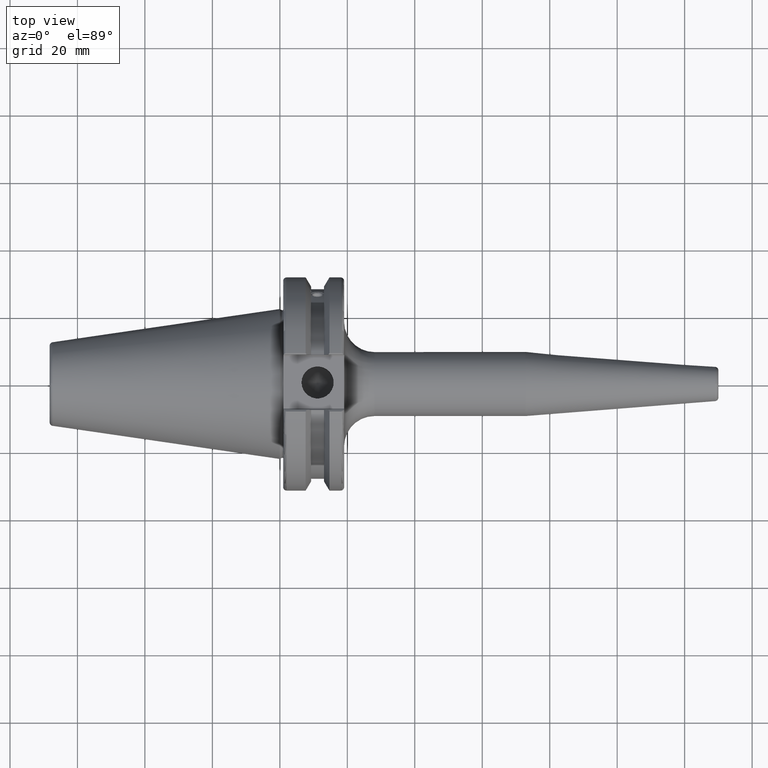
[diagram: clean part render]
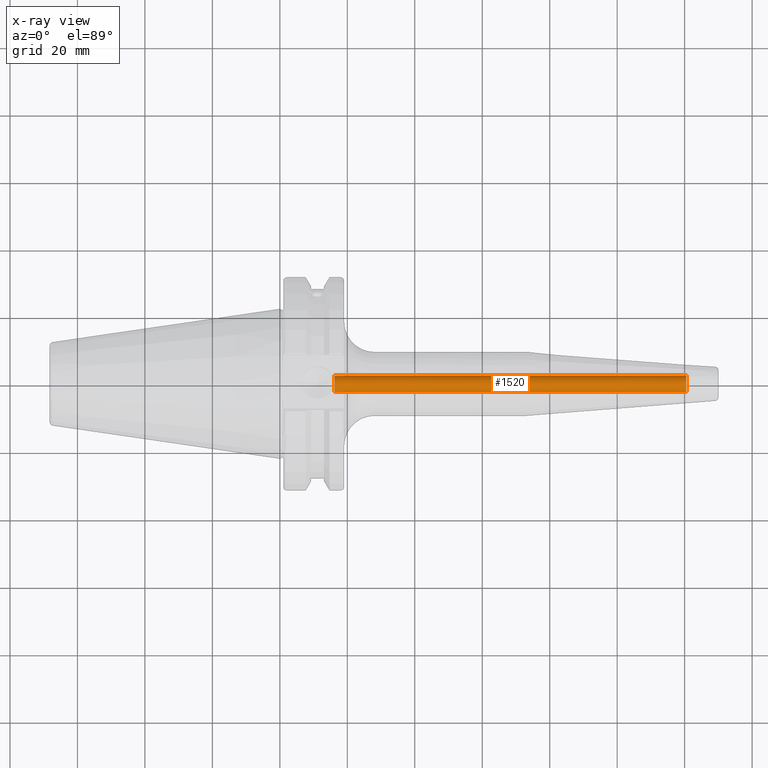
[diagram: x-ray — body ghosted, one internal face saturated and labeled with its STEP entity id]
A machine part, top view, then the same camera in x-ray: the body is ghosted and one INTERNAL B-rep face — a face not visible from any outside direction — is saturated and labeled: STEP entity #1520.
In plain terms, the highlighted cylindrical surface (bore or boss wall) has radius 2.5 mm, axis along (1, 0, 0).
Its self-contained STEP definition (entity closure, byte-faithful):
#110=LINE('',#2335,#206);
#206=VECTOR('',#1876,2.5);
#290=CYLINDRICAL_SURFACE('',#1648,2.5);
#375=FACE_OUTER_BOUND('',#465,.T.);
#465=EDGE_LOOP('',(#1075,#1076,#1077,#1078,#1079));
#572=CIRCLE('',#1647,2.5);
#573=CIRCLE('',#1649,2.5);
#574=CIRCLE('',#1650,2.5);
#655=VERTEX_POINT('',#2328);
#656=VERTEX_POINT('',#2332);
#657=VERTEX_POINT('',#2333);
#817=EDGE_CURVE('',#655,#655,#572,.T.);
#819=EDGE_CURVE('',#656,#657,#573,.T.);
#820=EDGE_CURVE('',#656,#655,#110,.T.);
#821=EDGE_CURVE('',#657,#656,#574,.T.);
#1075=ORIENTED_EDGE('',*,*,#819,.F.);
#1076=ORIENTED_EDGE('',*,*,#820,.T.);
#1077=ORIENTED_EDGE('',*,*,#817,.T.);
#1078=ORIENTED_EDGE('',*,*,#820,.F.);
#1079=ORIENTED_EDGE('',*,*,#821,.F.);
#1520=ADVANCED_FACE('',(#375),#290,.F.);
#1647=AXIS2_PLACEMENT_3D('',#2329,#1869,#1870);
#1648=AXIS2_PLACEMENT_3D('',#2331,#1872,#1873);
#1649=AXIS2_PLACEMENT_3D('',#2334,#1874,#1875);
#1650=AXIS2_PLACEMENT_3D('',#2336,#1877,#1878);
#1869=DIRECTION('center_axis',(1.,0.,0.));
#1870=DIRECTION('ref_axis',(0.,1.,0.));
#1872=DIRECTION('center_axis',(1.,0.,0.));
#1873=DIRECTION('ref_axis',(0.,1.,0.));
#1874=DIRECTION('center_axis',(1.,0.,0.));
#1875=DIRECTION('ref_axis',(0.,1.,0.));
#1876=DIRECTION('',(1.,0.,0.));
#1877=DIRECTION('center_axis',(1.,0.,0.));
#1878=DIRECTION('ref_axis',(0.,1.,0.));
#2328=CARTESIAN_POINT('',(120.47,-2.50000000000001,-3.06161699786839E-16));
#2329=CARTESIAN_POINT('Origin',(120.47,0.,0.));
#2331=CARTESIAN_POINT('Origin',(26.11,0.,0.));
#2332=CARTESIAN_POINT('',(16.1534424761102,-2.5,-3.06161699786838E-16));
#2333=CARTESIAN_POINT('',(16.1534424761102,-3.06161699786838E-16,-2.5));
#2334=CARTESIAN_POINT('Origin',(16.1534424761102,0.,0.));
#2335=CARTESIAN_POINT('',(26.11,-2.5,-3.06161699786838E-16));
#2336=CARTESIAN_POINT('Origin',(16.1534424761102,0.,0.));